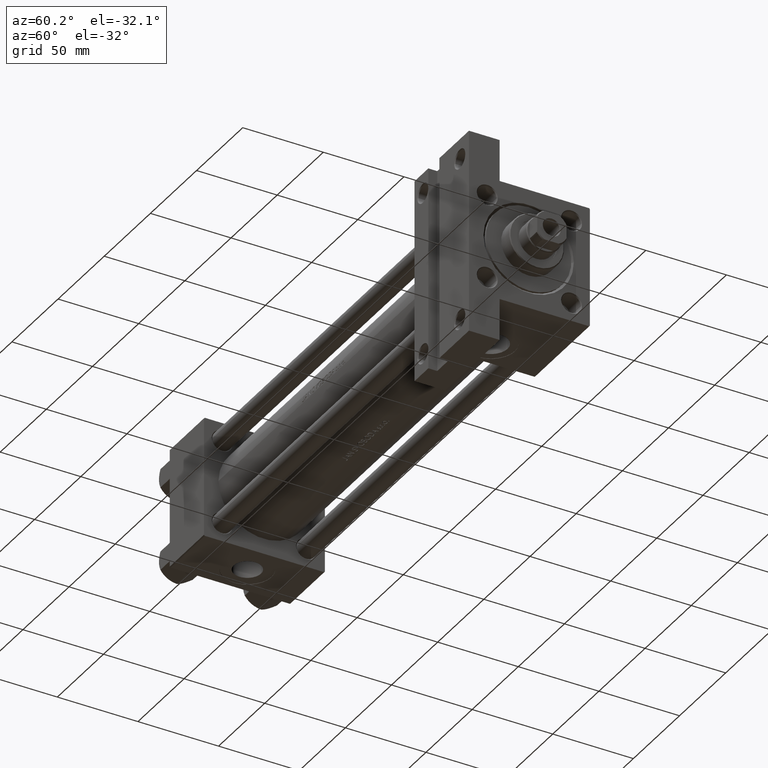
[diagram: clean part render]
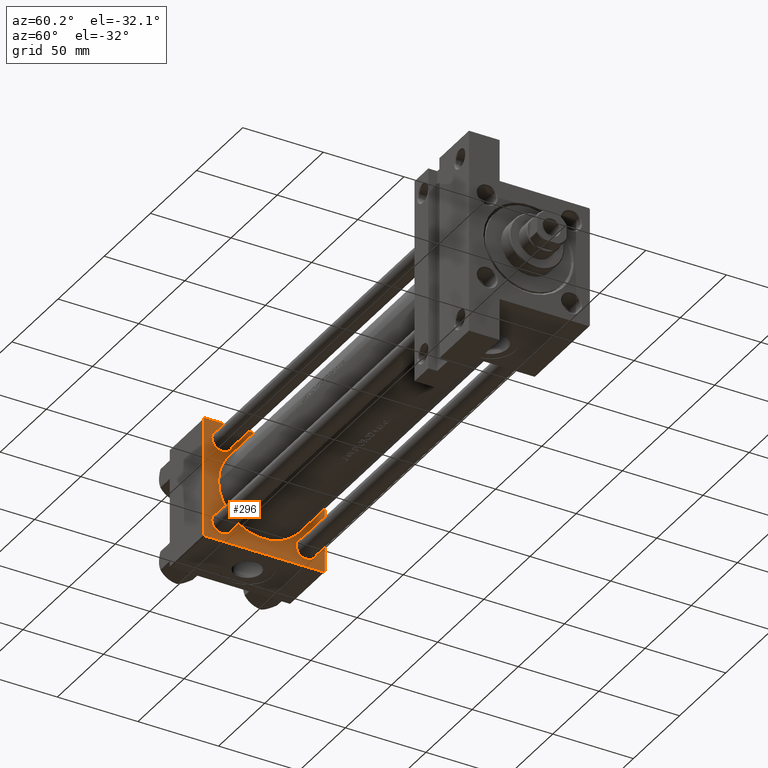
[diagram: same view with one face highlighted and labeled with its STEP entity id]
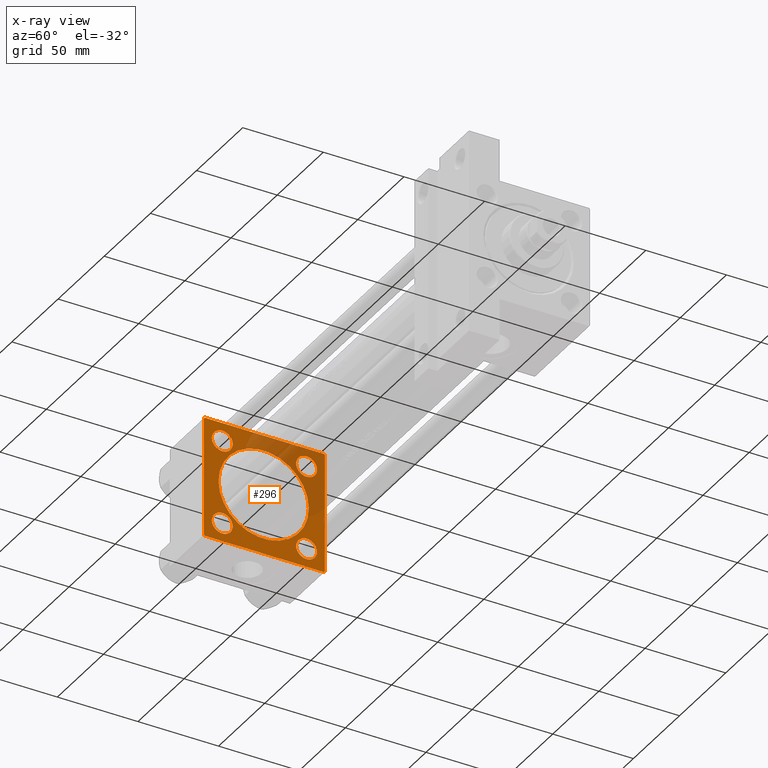
[diagram: x-ray of the same camera — body ghosted, the highlighted face saturated]
A machine part, auxiliary view. The second image highlights one B-rep face of the part: STEP entity #296.
The next image is the same camera in x-ray: the body ghosted, the highlighted face saturated — about 30% of this face is hidden behind the body in this view.
In plain terms, the highlighted planar face has unit normal (-1, 0, -0).
Its self-contained STEP definition (entity closure, byte-faithful):
#262 = CARTESIAN_POINT ( 'NONE',  ( 37.00000000000000000, -37.00000000000002132, -37.50000000000000711 ) ) ;
#296 = ADVANCED_FACE ( 'NONE', ( #20447, #31276, #24537, #45533, #12513, #5801 ), #6039, .F. ) ;
#578 = DIRECTION ( 'NONE',  ( 0.000000000000000000, 0.000000000000000000, 1.000000000000000000 ) ) ;
#1063 = VERTEX_POINT ( 'NONE', #10126 ) ;
#1107 = CARTESIAN_POINT ( 'NONE',  ( 37.00000000000000000, -37.50000000000000711, 36.99999999999999289 ) ) ;
#1218 = CIRCLE ( 'NONE', #38112, 28.00000000000000000 ) ;
#1504 = CARTESIAN_POINT ( 'NONE',  ( 37.00000000000000000, -26.14999999999999147, -19.65000000000006253 ) ) ;
#1694 = CARTESIAN_POINT ( 'NONE',  ( 37.00000000000000000, -26.14999999999999147, 19.65000000000005542 ) ) ;
#1770 = CARTESIAN_POINT ( 'NONE',  ( 37.00000000000000000, -37.50000000000000000, -37.00000000000003553 ) ) ;
#1945 = DIRECTION ( 'NONE',  ( 0.000000000000000000, 0.000000000000000000, 1.000000000000000000 ) ) ;
#2063 = VECTOR ( 'NONE', #18899, 1000.000000000000114 ) ;
#2534 = DIRECTION ( 'NONE',  ( -0.000000000000000000, 0.7071067811865474617, 0.7071067811865474617 ) ) ;
#3025 = ORIENTED_EDGE ( 'NONE', *, *, #8851, .T. ) ;
#3445 = DIRECTION ( 'NONE',  ( 0.000000000000000000, 0.000000000000000000, 1.000000000000000000 ) ) ;
#3480 = CARTESIAN_POINT ( 'NONE',  ( 37.00000000000000000, 36.99999999999999289, 37.50000000000000000 ) ) ;
#4000 = EDGE_CURVE ( 'NONE', #36339, #28530, #38622, .T. ) ;
#4115 = DIRECTION ( 'NONE',  ( 1.000000000000000000, -0.000000000000000000, 0.000000000000000000 ) ) ;
#4230 = VERTEX_POINT ( 'NONE', #3480 ) ;
#4498 = EDGE_CURVE ( 'NONE', #8561, #39370, #18677, .T. ) ;
#4936 = EDGE_CURVE ( 'NONE', #35244, #33514, #30503, .T. ) ;
#5029 = CARTESIAN_POINT ( 'NONE',  ( 37.00000000000000711, 6.123233995736772199E-17, 27.50000000000000000 ) ) ;
#5118 = AXIS2_PLACEMENT_3D ( 'NONE', #8775, #5422, #5186 ) ;
#5186 = DIRECTION ( 'NONE',  ( 0.000000000000000000, 0.000000000000000000, 1.000000000000000000 ) ) ;
#5273 = ORIENTED_EDGE ( 'NONE', *, *, #36453, .T. ) ;
#5284 = CARTESIAN_POINT ( 'NONE',  ( 37.00000000000000000, 37.49999999999999289, 37.00000000000000000 ) ) ;
#5422 = DIRECTION ( 'NONE',  ( -1.000000000000000000, 0.000000000000000000, -0.000000000000000000 ) ) ;
#5801 = FACE_OUTER_BOUND ( 'NONE', #11938, .T. ) ;
#6039 = PLANE ( 'NONE',  #28085 ) ;
#6167 = EDGE_CURVE ( 'NONE', #7709, #22883, #6746, .T. ) ;
#6360 = CIRCLE ( 'NONE', #39408, 6.499999999999953815 ) ;
#6546 = CARTESIAN_POINT ( 'NONE',  ( 37.00000000000000000, -37.00000000000002132, -37.50000000000000711 ) ) ;
#6746 = CIRCLE ( 'NONE', #20548, 6.499999999999953815 ) ;
#6989 = LINE ( 'NONE', #32461, #14584 ) ;
#7129 = EDGE_CURVE ( 'NONE', #39370, #28946, #28377, .T. ) ;
#7709 = VERTEX_POINT ( 'NONE', #21991 ) ;
#7961 = CARTESIAN_POINT ( 'NONE',  ( 37.00000000000000000, -37.50000000000000711, 36.99999999999999289 ) ) ;
#8117 = ORIENTED_EDGE ( 'NONE', *, *, #7129, .T. ) ;
#8207 = EDGE_CURVE ( 'NONE', #36339, #19277, #10282, .T. ) ;
#8313 = DIRECTION ( 'NONE',  ( 0.000000000000000000, -0.7071067811865474617, 0.7071067811865474617 ) ) ;
#8561 = VERTEX_POINT ( 'NONE', #16253 ) ;
#8566 = CARTESIAN_POINT ( 'NONE',  ( 37.00000000000000000, 26.14999999999999858, -26.15000000000000213 ) ) ;
#8775 = CARTESIAN_POINT ( 'NONE',  ( 37.00000000000000000, -26.14999999999999147, -26.15000000000000924 ) ) ;
#8851 = EDGE_CURVE ( 'NONE', #1063, #39054, #10640, .T. ) ;
#9090 = VECTOR ( 'NONE', #39169, 1000.000000000000000 ) ;
#9157 = ORIENTED_EDGE ( 'NONE', *, *, #6167, .T. ) ;
#9411 = VERTEX_POINT ( 'NONE', #5029 ) ;
#10126 = CARTESIAN_POINT ( 'NONE',  ( 37.00000000000000000, -26.14999999999999147, -32.64999999999995595 ) ) ;
#10282 = LINE ( 'NONE', #35064, #9090 ) ;
#10640 = CIRCLE ( 'NONE', #16773, 6.499999999999946709 ) ;
#10744 = EDGE_CURVE ( 'NONE', #43652, #4230, #41773, .T. ) ;
#11097 = CARTESIAN_POINT ( 'NONE',  ( 37.00000000000000711, 6.123233995736772199E-17, -0.5000000000000004441 ) ) ;
#11539 = DIRECTION ( 'NONE',  ( 0.000000000000000000, 0.7071067811865524577, -0.7071067811865426878 ) ) ;
#11555 = DIRECTION ( 'NONE',  ( 0.000000000000000000, 0.000000000000000000, 1.000000000000000000 ) ) ;
#11938 = EDGE_LOOP ( 'NONE', ( #47430, #17514, #20756, #27742, #5273, #14829, #8117, #19483 ) ) ;
#12513 = FACE_BOUND ( 'NONE', #15381, .T. ) ;
#12744 = CARTESIAN_POINT ( 'NONE',  ( 37.00000000000000000, 0.000000000000000000, 0.000000000000000000 ) ) ;
#13235 = DIRECTION ( 'NONE',  ( -1.000000000000000000, 0.000000000000000000, -0.000000000000000000 ) ) ;
#13793 = VECTOR ( 'NONE', #8313, 1000.000000000000114 ) ;
#14584 = VECTOR ( 'NONE', #17552, 1000.000000000000000 ) ;
#14829 = ORIENTED_EDGE ( 'NONE', *, *, #4498, .T. ) ;
#15348 = DIRECTION ( 'NONE',  ( 0.000000000000000000, -1.000000000000000000, -9.251858538542971581E-17 ) ) ;
#15354 = CIRCLE ( 'NONE', #32287, 6.499999999999946709 ) ;
#15381 = EDGE_LOOP ( 'NONE', ( #20700, #23756 ) ) ;
#15614 = LINE ( 'NONE', #262, #31454 ) ;
#15741 = EDGE_CURVE ( 'NONE', #43652, #28530, #6989, .T. ) ;
#16253 = CARTESIAN_POINT ( 'NONE',  ( 37.00000000000000000, -37.00000000000000711, 37.49999999999999289 ) ) ;
#16773 = AXIS2_PLACEMENT_3D ( 'NONE', #24850, #47042, #3445 ) ;
#17509 = DIRECTION ( 'NONE',  ( -1.000000000000000000, 0.000000000000000000, -0.000000000000000000 ) ) ;
#17514 = ORIENTED_EDGE ( 'NONE', *, *, #4000, .T. ) ;
#17552 = DIRECTION ( 'NONE',  ( 0.000000000000000000, 0.000000000000000000, -1.000000000000000000 ) ) ;
#17797 = CARTESIAN_POINT ( 'NONE',  ( 37.00000000000000000, -37.50000000000000711, 37.49999999999999289 ) ) ;
#18677 = LINE ( 'NONE', #1107, #2063 ) ;
#18731 = DIRECTION ( 'NONE',  ( 0.000000000000000000, 0.000000000000000000, 1.000000000000000000 ) ) ;
#18899 = DIRECTION ( 'NONE',  ( -0.000000000000000000, -0.7071067811865474617, -0.7071067811865474617 ) ) ;
#18998 = DIRECTION ( 'NONE',  ( -1.000000000000000000, 0.000000000000000000, -0.000000000000000000 ) ) ;
#19001 = VECTOR ( 'NONE', #35832, 1000.000000000000000 ) ;
#19068 = DIRECTION ( 'NONE',  ( -1.000000000000000000, 0.000000000000000000, -0.000000000000000000 ) ) ;
#19277 = VERTEX_POINT ( 'NONE', #6546 ) ;
#19286 = VERTEX_POINT ( 'NONE', #46763 ) ;
#19381 = DIRECTION ( 'NONE',  ( 0.000000000000000000, 0.000000000000000000, 1.000000000000000000 ) ) ;
#19483 = ORIENTED_EDGE ( 'NONE', *, *, #43573, .T. ) ;
#19757 = AXIS2_PLACEMENT_3D ( 'NONE', #21640, #26182, #18731 ) ;
#20447 = FACE_BOUND ( 'NONE', #24374, .T. ) ;
#20548 = AXIS2_PLACEMENT_3D ( 'NONE', #41681, #17509, #1945 ) ;
#20700 = ORIENTED_EDGE ( 'NONE', *, *, #27465, .F. ) ;
#20756 = ORIENTED_EDGE ( 'NONE', *, *, #15741, .F. ) ;
#21640 = CARTESIAN_POINT ( 'NONE',  ( 37.00000000000000000, 26.14999999999999858, 26.15000000000000213 ) ) ;
#21991 = CARTESIAN_POINT ( 'NONE',  ( 37.00000000000000000, -26.14999999999999147, 32.64999999999996305 ) ) ;
#22058 = EDGE_LOOP ( 'NONE', ( #47066, #25483 ) ) ;
#22478 = EDGE_CURVE ( 'NONE', #22883, #7709, #6360, .T. ) ;
#22528 = EDGE_LOOP ( 'NONE', ( #34338, #9157 ) ) ;
#22883 = VERTEX_POINT ( 'NONE', #1694 ) ;
#23262 = EDGE_CURVE ( 'NONE', #44597, #9411, #25018, .T. ) ;
#23267 = CARTESIAN_POINT ( 'NONE',  ( 37.00000000000000000, 37.49999999999999289, 37.50000000000000000 ) ) ;
#23423 = EDGE_CURVE ( 'NONE', #42414, #19286, #35804, .T. ) ;
#23437 = CARTESIAN_POINT ( 'NONE',  ( 37.00000000000000000, 36.99999999999999289, 37.50000000000000000 ) ) ;
#23756 = ORIENTED_EDGE ( 'NONE', *, *, #23262, .F. ) ;
#23927 = CARTESIAN_POINT ( 'NONE',  ( 37.00000000000000000, 37.49999999999999289, -36.99999999999998579 ) ) ;
#24374 = EDGE_LOOP ( 'NONE', ( #3025, #29926 ) ) ;
#24537 = FACE_BOUND ( 'NONE', #22528, .T. ) ;
#24850 = CARTESIAN_POINT ( 'NONE',  ( 37.00000000000000000, -26.14999999999999147, -26.15000000000000924 ) ) ;
#25018 = CIRCLE ( 'NONE', #46613, 28.00000000000000000 ) ;
#25483 = ORIENTED_EDGE ( 'NONE', *, *, #23423, .T. ) ;
#25979 = CARTESIAN_POINT ( 'NONE',  ( 37.00000000000000000, 26.14999999999999858, 19.65000000000005187 ) ) ;
#26182 = DIRECTION ( 'NONE',  ( -1.000000000000000000, 0.000000000000000000, -0.000000000000000000 ) ) ;
#26359 = DIRECTION ( 'NONE',  ( -1.000000000000000000, 0.000000000000000000, -0.000000000000000000 ) ) ;
#26462 = EDGE_LOOP ( 'NONE', ( #33531, #26698 ) ) ;
#26698 = ORIENTED_EDGE ( 'NONE', *, *, #45267, .T. ) ;
#27115 = LINE ( 'NONE', #23267, #32880 ) ;
#27180 = DIRECTION ( 'NONE',  ( -0.000000000000000000, 0.000000000000000000, 1.000000000000000000 ) ) ;
#27465 = EDGE_CURVE ( 'NONE', #9411, #44597, #1218, .T. ) ;
#27742 = ORIENTED_EDGE ( 'NONE', *, *, #10744, .T. ) ;
#28085 = AXIS2_PLACEMENT_3D ( 'NONE', #12744, #13235, #27180 ) ;
#28256 = EDGE_CURVE ( 'NONE', #39054, #1063, #30433, .T. ) ;
#28377 = LINE ( 'NONE', #17797, #19001 ) ;
#28530 = VERTEX_POINT ( 'NONE', #30139 ) ;
#28946 = VERTEX_POINT ( 'NONE', #1770 ) ;
#29926 = ORIENTED_EDGE ( 'NONE', *, *, #28256, .T. ) ;
#30084 = DIRECTION ( 'NONE',  ( 1.000000000000000000, -0.000000000000000000, 0.000000000000000000 ) ) ;
#30139 = CARTESIAN_POINT ( 'NONE',  ( 37.00000000000000000, 37.49999999999999289, -36.99999999999998579 ) ) ;
#30433 = CIRCLE ( 'NONE', #5118, 6.499999999999946709 ) ;
#30503 = CIRCLE ( 'NONE', #19757, 6.499999999999946709 ) ;
#31276 = FACE_BOUND ( 'NONE', #22058, .T. ) ;
#31454 = VECTOR ( 'NONE', #11539, 1000.000000000000000 ) ;
#32287 = AXIS2_PLACEMENT_3D ( 'NONE', #34133, #18998, #37299 ) ;
#32374 = CARTESIAN_POINT ( 'NONE',  ( 37.00000000000000000, 26.14999999999999858, 32.64999999999995595 ) ) ;
#32461 = CARTESIAN_POINT ( 'NONE',  ( 37.00000000000000000, 37.49999999999999289, 37.50000000000000000 ) ) ;
#32880 = VECTOR ( 'NONE', #15348, 1000.000000000000000 ) ;
#32964 = DIRECTION ( 'NONE',  ( 0.000000000000000000, 0.000000000000000000, 1.000000000000000000 ) ) ;
#33207 = CARTESIAN_POINT ( 'NONE',  ( 37.00000000000000000, 26.14999999999999858, -26.15000000000000213 ) ) ;
#33444 = DIRECTION ( 'NONE',  ( 0.000000000000000000, 0.000000000000000000, 1.000000000000000000 ) ) ;
#33506 = CARTESIAN_POINT ( 'NONE',  ( 37.00000000000000000, -26.14999999999999147, 26.15000000000000924 ) ) ;
#33514 = VERTEX_POINT ( 'NONE', #32374 ) ;
#33531 = ORIENTED_EDGE ( 'NONE', *, *, #4936, .T. ) ;
#34133 = CARTESIAN_POINT ( 'NONE',  ( 37.00000000000000000, 26.14999999999999858, 26.15000000000000213 ) ) ;
#34338 = ORIENTED_EDGE ( 'NONE', *, *, #22478, .T. ) ;
#35006 = AXIS2_PLACEMENT_3D ( 'NONE', #8566, #26359, #19381 ) ;
#35064 = CARTESIAN_POINT ( 'NONE',  ( 37.00000000000000000, 37.49999999999999289, -37.50000000000000000 ) ) ;
#35244 = VERTEX_POINT ( 'NONE', #25979 ) ;
#35348 = AXIS2_PLACEMENT_3D ( 'NONE', #33207, #44569, #11555 ) ;
#35804 = CIRCLE ( 'NONE', #35006, 6.499999999999946709 ) ;
#35832 = DIRECTION ( 'NONE',  ( 0.000000000000000000, 9.251858538542971581E-17, -1.000000000000000000 ) ) ;
#36339 = VERTEX_POINT ( 'NONE', #36539 ) ;
#36453 = EDGE_CURVE ( 'NONE', #4230, #8561, #27115, .T. ) ;
#36539 = CARTESIAN_POINT ( 'NONE',  ( 37.00000000000000000, 36.99999999999997868, -37.50000000000000000 ) ) ;
#37293 = CARTESIAN_POINT ( 'NONE',  ( 37.00000000000000711, 6.123233995736772199E-17, -0.5000000000000004441 ) ) ;
#37299 = DIRECTION ( 'NONE',  ( 0.000000000000000000, 0.000000000000000000, 1.000000000000000000 ) ) ;
#38112 = AXIS2_PLACEMENT_3D ( 'NONE', #37293, #4115, #32964 ) ;
#38622 = LINE ( 'NONE', #23927, #44390 ) ;
#39054 = VERTEX_POINT ( 'NONE', #1504 ) ;
#39169 = DIRECTION ( 'NONE',  ( 0.000000000000000000, -1.000000000000000000, -9.251858538542972814E-17 ) ) ;
#39370 = VERTEX_POINT ( 'NONE', #7961 ) ;
#39408 = AXIS2_PLACEMENT_3D ( 'NONE', #33506, #19068, #578 ) ;
#39452 = CARTESIAN_POINT ( 'NONE',  ( 37.00000000000000711, 3.490243377569955667E-15, -28.50000000000000000 ) ) ;
#39660 = CARTESIAN_POINT ( 'NONE',  ( 37.00000000000000000, 26.14999999999999858, -19.65000000000005542 ) ) ;
#41681 = CARTESIAN_POINT ( 'NONE',  ( 37.00000000000000000, -26.14999999999999147, 26.15000000000000924 ) ) ;
#41773 = LINE ( 'NONE', #23437, #13793 ) ;
#42414 = VERTEX_POINT ( 'NONE', #39660 ) ;
#43573 = EDGE_CURVE ( 'NONE', #28946, #19277, #15614, .T. ) ;
#43652 = VERTEX_POINT ( 'NONE', #5284 ) ;
#44390 = VECTOR ( 'NONE', #2534, 1000.000000000000114 ) ;
#44569 = DIRECTION ( 'NONE',  ( -1.000000000000000000, 0.000000000000000000, -0.000000000000000000 ) ) ;
#44597 = VERTEX_POINT ( 'NONE', #39452 ) ;
#45184 = EDGE_CURVE ( 'NONE', #19286, #42414, #45387, .T. ) ;
#45267 = EDGE_CURVE ( 'NONE', #33514, #35244, #15354, .T. ) ;
#45387 = CIRCLE ( 'NONE', #35348, 6.499999999999946709 ) ;
#45533 = FACE_BOUND ( 'NONE', #26462, .T. ) ;
#46613 = AXIS2_PLACEMENT_3D ( 'NONE', #11097, #30084, #33444 ) ;
#46763 = CARTESIAN_POINT ( 'NONE',  ( 37.00000000000000000, 26.14999999999999858, -32.64999999999994884 ) ) ;
#47042 = DIRECTION ( 'NONE',  ( -1.000000000000000000, 0.000000000000000000, -0.000000000000000000 ) ) ;
#47066 = ORIENTED_EDGE ( 'NONE', *, *, #45184, .T. ) ;
#47430 = ORIENTED_EDGE ( 'NONE', *, *, #8207, .F. ) ;